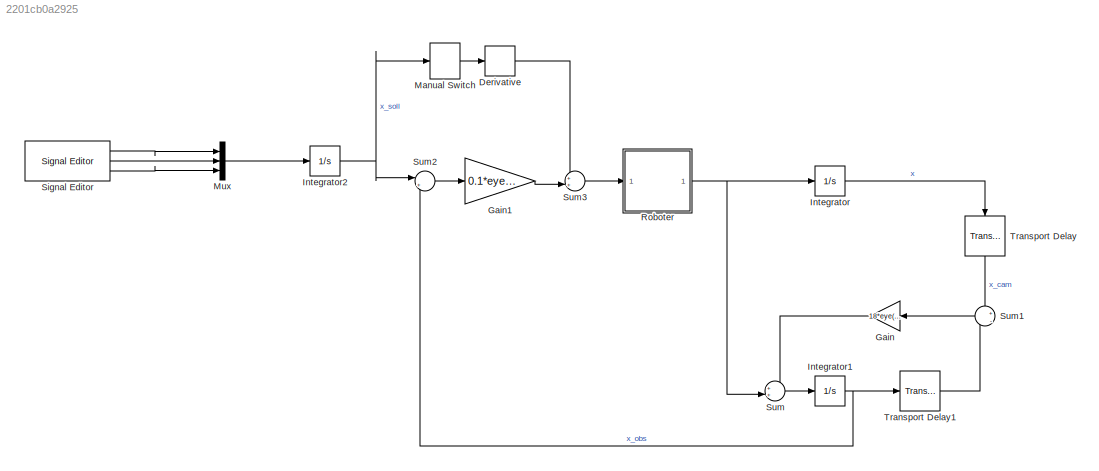
MODEL slx_2201cb0a2925
KIND model
CONFIG AbsTol = auto
CONFIG EnableMultiTasking = off
CONFIG FixedStep = auto
CONFIG MaxStep = auto
CONFIG MinStep = auto
CONFIG RelTol = 1e-3
CONFIG SampleTimeConstraint = Unconstrained
CONFIG SolverName = VariableStepAuto
CONFIG StartTime = 0.0
CONFIG StopTime = 10
WORKSPACE source: mxarray member
WORKSPACE D = 0.403776507668
WORKSPACE Dtheta = 0.380153322744
WORKSPACE Sig: Simulink.Signal (value not decoded)
WORKSPACE T = 0.218447386965
WORKSPACE Ttheta = 0.106008422232
BLOCK [Derivative] Derivative
BLOCK [Gain] Gain
  Gain = 18*eye(3)
  Multiplication = Matrix(K*u)
  NameLocation = top
BLOCK [Gain] Gain1
  Gain = 0.1*eye(3)
  Multiplication = Matrix(K*u)
BLOCK [Integrator] Integrator
  Ports = [1, 1]
BLOCK [Integrator] Integrator1
  Ports = [1, 1]
BLOCK [Integrator] Integrator2
  Ports = [1, 1]
BLOCK [ManualSwitch] Manual Switch
BLOCK [Mux] Mux
  DisplayOption = bar
  Inputs = 3
  Ports = [3, 1]
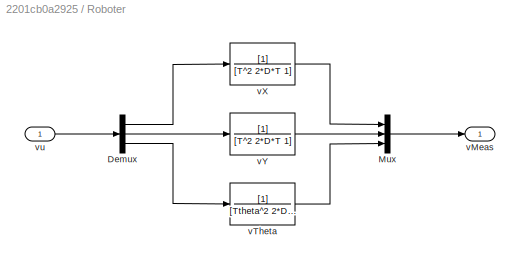
BLOCK [SubSystem] Roboter
  Ports = [1, 1]
  RequestExecContextInheritance = off
BLOCK [Demux] Roboter/Demux
  Outputs = 3
  Ports = [1, 3]
BLOCK [Mux] Roboter/Mux
  DisplayOption = bar
  Inputs = 3
  Ports = [3, 1]
BLOCK [Outport] Roboter/vMeas
BLOCK [TransferFcn] Roboter/vTheta
  Denominator = [Ttheta^2 2*Dtheta*Ttheta 1]
BLOCK [TransferFcn] Roboter/vX
  Denominator = [T^2 2*D*T 1]
BLOCK [TransferFcn] Roboter/vY
  Denominator = [T^2 2*D*T 1]
BLOCK [Inport] Roboter/vu
BLOCK [Reference] Signal Editor  REF=SignalEditorBlockLib/Signal Editor
  Ports = [0, 3]
  SourceBlock = SignalEditorBlockLib/Signal Editor
  SourceProductBaseCode = SL
  SourceType = SignalEditor
  UserDataPersistent = on
BLOCK [Sum] Sum
  Inputs = ++|
  Ports = [2, 1]
BLOCK [Sum] Sum1
  Inputs = +|-
  NameLocation = top
  Ports = [2, 1]
BLOCK [Sum] Sum2
  Inputs = |+-
  Ports = [2, 1]
BLOCK [Sum] Sum3
  Inputs = ++|
  Ports = [2, 1]
BLOCK [TransportDelay] Transport Delay
  DelayTime = 0.04
  NameLocation = left
  Ports = [1, 1]
BLOCK [TransportDelay] Transport Delay1
  DelayTime = 0.14
  Ports = [1, 1]
LINE Derivative:1 -> Sum3:1
LINE Gain1:1 -> Sum3:2
LINE Gain:1 -> Sum:1
NET Integrator1:1 -> Sum2:2, Transport Delay1:1
NET Integrator2:1 -> Manual Switch:1, Sum2:1
LINE Integrator:1 -> Transport Delay:1
LINE Manual Switch:1 -> Derivative:1
LINE Mux:1 -> Integrator2:1
LINE Roboter/Demux:1 -> Roboter/vX:1
LINE Roboter/Demux:2 -> Roboter/vY:1
LINE Roboter/Demux:3 -> Roboter/vTheta:1
LINE Roboter/Mux:1 -> Roboter/vMeas:1
LINE Roboter/vTheta:1 -> Roboter/Mux:3
LINE Roboter/vX:1 -> Roboter/Mux:1
LINE Roboter/vY:1 -> Roboter/Mux:2
LINE Roboter/vu:1 -> Roboter/Demux:1
NET Roboter:1 -> Integrator:1, Sum:2
LINE Signal Editor:1 -> Mux:1
LINE Signal Editor:2 -> Mux:2
LINE Signal Editor:3 -> Mux:3
LINE Sum1:1 -> Gain:1
LINE Sum2:1 -> Gain1:1
LINE Sum3:1 -> Roboter:1
LINE Sum:1 -> Integrator1:1
LINE Transport Delay1:1 -> Sum1:2
LINE Transport Delay:1 -> Sum1:1
note: NET lines group one-source signal fan-out (src -> all destinations, sorted); 1:1 wires keep LINE
